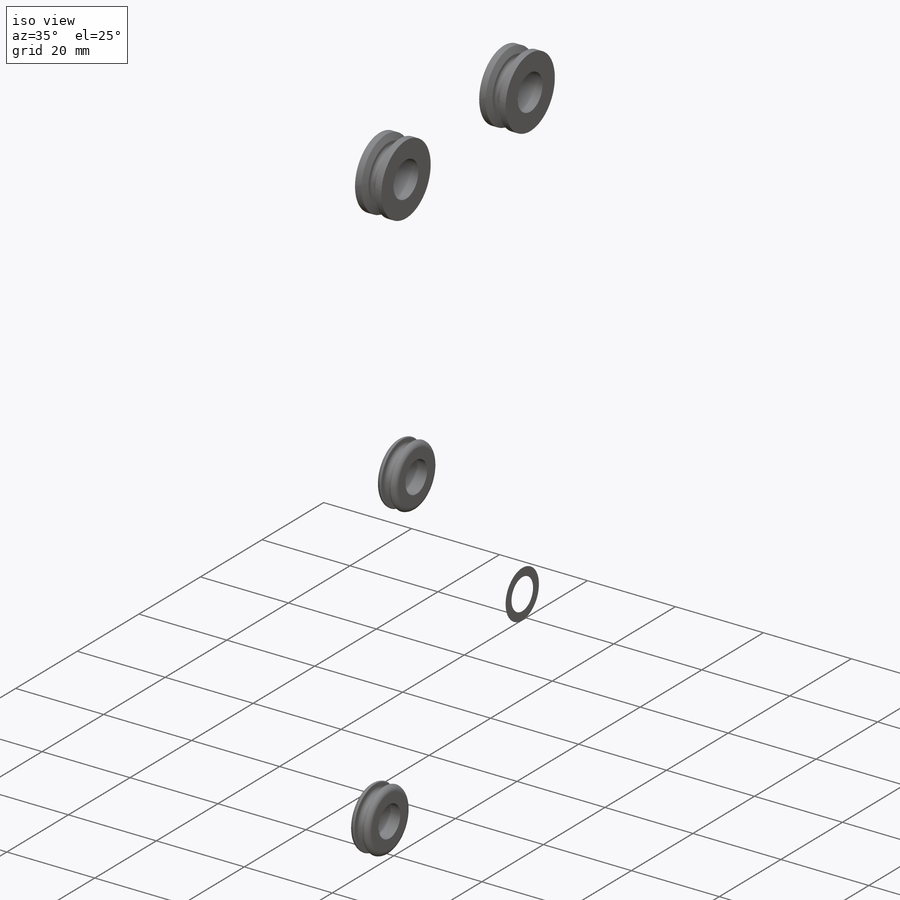
[diagram: iso view]
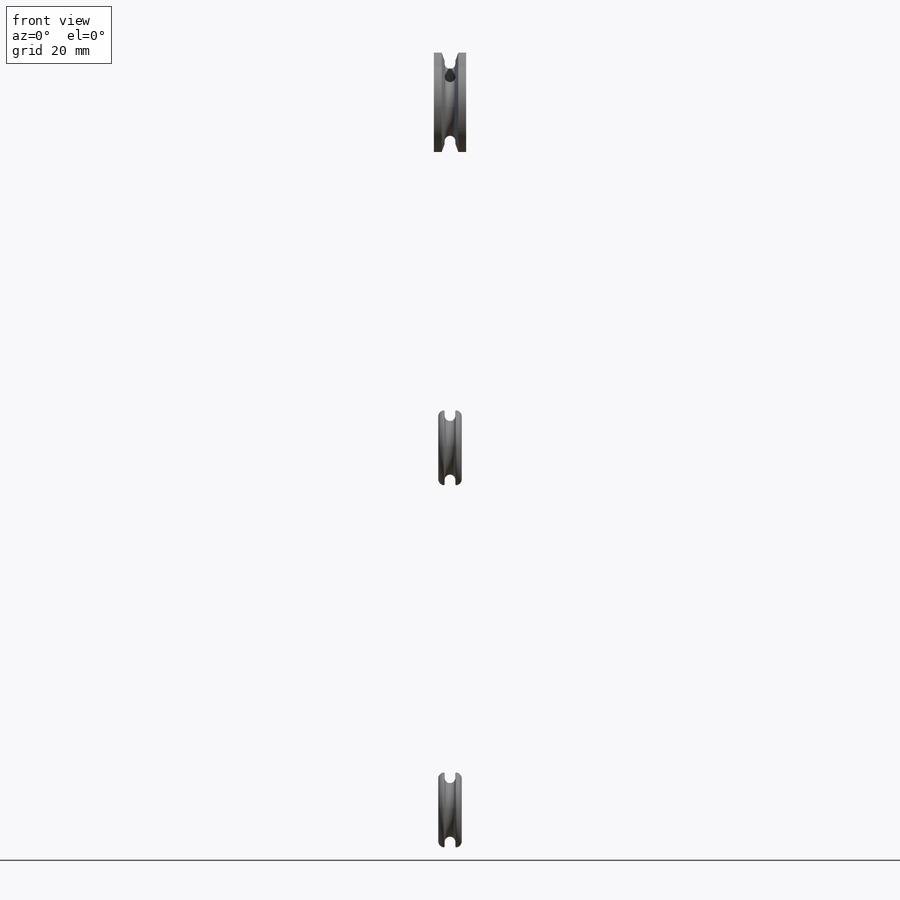
[diagram: front view]
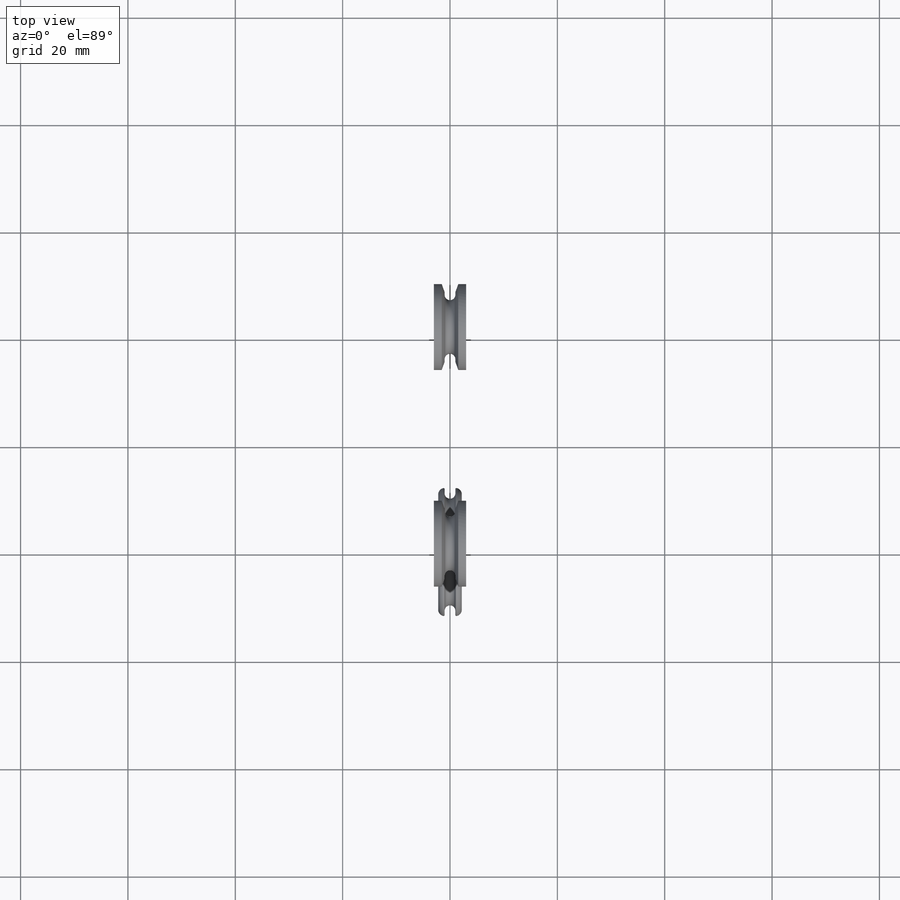
[diagram: top view]
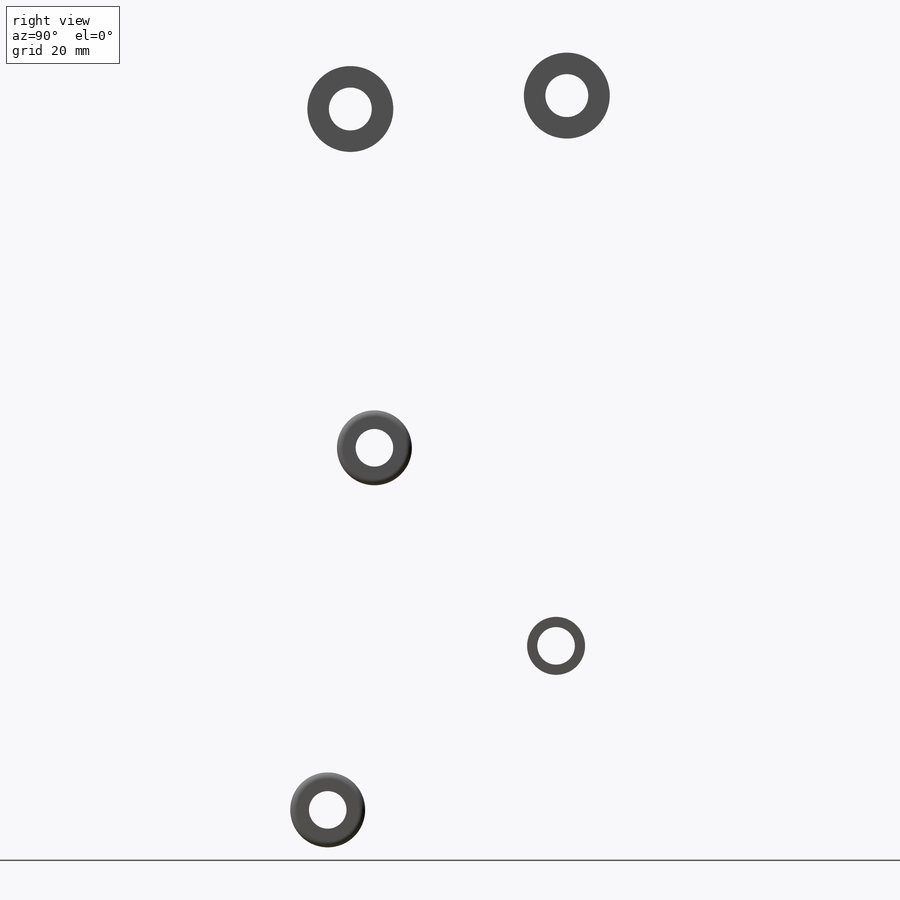
[diagram: right view]
SOLIDWORKS PART (.sldprt)
format: sldprt  version: not decoded by parser v0  size: 20,496,896 bytes
history: native  units: mm
features: sketch x119, plane x56, extrude x21, cut_extrude x19, revolve x13, cut_revolve x12, surface_op x9, chamfer x5, fillet x4, boolean_combine x3, move_body x2, material x1, sweep x1 + 6 further entries (+28 scaffold rows collapsed; 16 parser-record rows omitted)
feature tree (315):
  scaffold x28  (default folders/planes/origin — collapsed)
  material  "Material <nicht festgelegt>"
  plane  "Vorne"
  plane  "Oben"
  plane  "Rechts"
  plane  "Vorne-p-bein-rechts-v02"
  plane  "Oben-p-bein-rechts-v02"
  plane  "Rechts-p-bein-rechts-v02"
  plane  "Vorne-p-geometriemodel-bein-rechts-v02-p-bein-rechts-v02"
  plane  "Oben-p-geometriemodel-bein-rechts-v02-p-bein-rechts-v02"
  plane  "Rechts-p-geometriemodel-bein-rechts-v02-p-bein-rechts-v02"  Offset=60mm
  sketch  "Skizze1-p-geometriemodel-bein-rechts-v02-p-bein-rechts-v02"  dims[D1=20.0mm]
  sketch  "Skizze3-p-geometriemodel-bein-rechts-v02-p-bein-rechts-v02"  dims[D1=178.0mm]
  plane  "Ebene1-p-geometriemodel-bein-rechts-v02-p-bein-rechts-v02"
  "3D-Skizze3-p-geometriemodel-bein-rechts-v02-p-bein-rechts-v02"
  plane  "Ebene2-p-geometriemodel-bein-rechts-v02-p-bein-rechts-v02"
  plane  "Ebene3-p-geometriemodel-bein-rechts-v02-p-bein-rechts-v02"
  plane  "Ebene45-p-bein-rechts-v02"
  sketch  "Skizze50-p-bein-rechts-v02"  dims[D1=50.0mm D2=50.0mm D3=30.0mm D4=30.0mm D5=30.0mm D6=30.0mm]
  sketch  "Skizze51-p-bein-rechts-v02"  dims[D1=10.0mm D2=25.0mm D3=15.0mm D4=20.0mm D5=42.0mm D6=15.0mm]
  plane  "Ebene46-p-bein-rechts-v02"
  plane  "Ebene47-p-bein-rechts-v02"
  sketch  "Skizze52-p-bein-rechts-v02"
  sketch  "Skizze53-p-bein-rechts-v02"
  sketch  "Skizze54-p-bein-rechts-v02"  dims[D1=35.0mm D2=25.0mm]
  sketch  "Skizze55-p-bein-rechts-v02"  dims[D1=20.0mm]
  sketch  "Skizze56-p-bein-rechts-v02"  dims[D1=10.0mm D2=5.0mm D3=25.0mm D4=70.0mm D5=25.0mm D6=40.0mm D7=15.0mm]
  "3D-Skizze16-p-bein-rechts-v02"
  plane  "Ebene48-p-bein-rechts-v02"
  sketch  "Skizze57-p-bein-rechts-v02"  dims[D1=30.0mm D2=35.0mm D3=30.0mm D4=25.0mm]
  "3D-Skizze17-p-bein-rechts-v02"
  sketch  "Skizze58-p-bein-rechts-v02"  dims[c1.D4=~110.057695mm c1.D1=35.0mm c1.D2=35.0mm c2.D2=35.0deg c2.D3=70.0mm]
  sketch  "Skizze59-p-bein-rechts-v02"  dims[c1.D1=268.4mm c2.D1=60.0deg c2.D2=40.0mm c2.D3=268.4mm c3.D3=55.0deg]
  sketch  "Skizze60-p-bein-rechts-v02"  dims[D1=27.0mm D2=27.0mm D3=25.0mm D4=20.0mm]
  sketch  "Skizze61-p-bein-rechts-v02"  dims[D1=15.0mm D2=85.0mm]
  sketch  "Skizze62-p-bein-rechts-v02"  dims[D1=15.0mm]
  sketch  "Skizze63-p-bein-rechts-v02"  dims[c1.D1=85.0mm c1.D2=85.0mm c2.D1=42.5mm]
  "p-bein-rechts-v02"
  parser-record x16  (decoder bookkeeping rows leaked as tree rows — omitted from the tree; the rows remain in map.json)
  plane  "Vorne-p-oberschenkel-hülle-v02"
  plane  "Oben-p-oberschenkel-hülle-v02"
  plane  "Rechts-p-oberschenkel-hülle-v02"
  plane  "Ebene26-p-oberschenkel-hülle-v02"
  plane  "Ebene27-p-oberschenkel-hülle-v02"
  plane  "Ebene28-p-oberschenkel-hülle-v02"
  plane  "Ebene29-p-oberschenkel-hülle-v02"
  sketch  "Skizze44-p-oberschenkel-hülle-v02"
  sketch  "Skizze45-p-oberschenkel-hülle-v02"  dims[D1=80.0mm]
  sketch  "Skizze46-p-oberschenkel-hülle-v02"
  sketch  "Skizze47-p-oberschenkel-hülle-v02"  dims[D1=80.0mm D2=20.0mm]
  sketch  "Skizze49-p-oberschenkel-hülle-v02"
  sketch  "Skizze50-p-oberschenkel-hülle-v02"
  sketch  "Skizze51-p-oberschenkel-hülle-v02"
  sketch  "Skizze52-p-oberschenkel-hülle-v02"  dims[D1=76.0mm]
  sketch  "Skizze62-p-oberschenkel-hülle-v02"
  sketch  "Skizze63-p-oberschenkel-hülle-v02"
  sketch  "Skizze65-p-oberschenkel-hülle-v02"
  sketch  "Skizze66-p-oberschenkel-hülle-v02"
  sketch  "Skizze69-p-oberschenkel-hülle-v02"
  sketch  "Skizze70-p-oberschenkel-hülle-v02"
  sketch  "Skizze71-p-oberschenkel-hülle-v02"
  sketch  "Skizze72-p-oberschenkel-hülle-v02"
  sketch  "Skizze92-p-oberschenkel-hülle-v02"  dims[D1=~70.619815mm D2=~17.016754mm]
  sketch  "Skizze94-p-oberschenkel-hülle-v02"
  sketch  "Skizze84-p-oberschenkel-hülle-v02"  dims[D1=77.0mm]
  sketch  "Skizze90-p-oberschenkel-hülle-v02"
  sketch  "Skizze89-p-oberschenkel-hülle-v02"
  sketch  "Skizze96-p-oberschenkel-hülle-v02"
  sketch  "Skizze95-p-oberschenkel-hülle-v02"  dims[c1.D13=120.0mm c1.D1=~175.129672mm c2.D1=15.0deg c2.D2=23.0mm c2.D3=65.0mm c2.D4=~44.878144mm c3.D4=12.0deg c3.D5=45.0mm c3.D6=10.0mm c3.D7=2.0mm c3.D8=10.0mm c3.D9=175.0mm c3.D10=35.0mm c3.D11=20.0mm c3.D12=2.5mm c3.D2=35.0mm c3.D3=3.0mm c4.D4=~175.845119mm c5.D4=15.0deg c5.D2=60.0mm c5.D3=19.0mm c5.D5=65.0mm c5.D6=11.0mm c5.D11=5.0mm c5.D12=91.0mm c5.D13=20.0mm c5.D14=11.0mm]
  "p-oberschenkel-hülle-v02"
  move_body  "Körper-Verschieben/Kopieren3"
  "Deckungsgleich1"
  sketch  "Skizze32"  dims[D1=15.8mm]
  cut_extrude  "Schnitt-Linear austragen1"  [1 undecoded]
  sketch  "Skizze31"  dims[c1.D1=~12.199433mm c2.D1=90.0deg c3.D1=9.6mm c3.D2=7.4mm c3.D3=6.6mm c3.D4=3.4mm c3.D5=47.0mm c3.D6=51.0mm c3.D7=4.8mm c3.D8=722.0mm c3.D9=65.0mm]
  cut_revolve  "Schnitt-Rotation1"  Angle=180deg
  sketch  "Skizze33"  dims[D1=43.3mm D2=8.0mm D3=8.0mm D4=29.0mm D5=26.3mm]
  cut_revolve  "Schnitt-Rotation2"  Angle=360deg
  sketch  "Skizze35"  dims[c1.D1=40.0mm c1.D2=45.0mm c1.D3=~85.919092mm c2.D3=5.0deg c2.D4=26.1mm]
  plane  "Ebene6"
  sketch  "Skizze53"  dims[c1.D1=26.1mm c1.D2=55.0mm c1.D3=80.0mm c1.D4=26.1mm c2.D4=10.0deg]
  plane  "Ebene8"
  sketch  "Skizze57"  dims[c1.D1=70.0mm c1.D2=66.0mm c1.D3=~117.504008mm c2.D3=18.0deg c2.D4=26.1mm]
  plane  "Ebene9"
  sketch  "Skizze60"  dims[c1.D1=26.1mm c1.D2=30.0mm c1.D3=90.0mm c1.D4=~113.616273mm c2.D4=2.5deg]
  plane  "Ebene10"
  fillet  "Verrundung1"  Radius=0.2mm
  sketch  "Skizze49"  dims[c1.D1=23.5mm c1.D2=2.0mm c1.D3=~105.126695mm c2.D3=69.0deg c2.D4=20.0mm c2.D5=15.0mm]
  extrude  "Aufsatz-Linear austragen1"  Depth=40mm
  sketch  "Skizze50"  dims[D1=4.0mm D2=30.0mm D3=5.0mm D4=8.0mm]
  cut_extrude  "Schnitt-Linear austragen2"  Depth=18mm
  sketch  "Skizze54"  dims[c1.D1=7.0mm c1.D2=34.5mm c1.D3=110.0mm c2.D3=40.0deg c2.D4=15.0mm c2.D5=20.0mm c2.D1=25.0mm c2.D2=12.0mm c3.D3=12.0mm c4.D3=74.0deg]
  extrude  "Aufsatz-Linear austragen3"  Depth=40mm
  sketch  "Skizze56"  dims[c1.D4=4.0mm c1.D1=35.0mm c1.D2=4.0mm c1.D3=30.0mm c2.D1=5.0mm c2.D2=8.0mm]
  cut_extrude  "Schnitt-Linear austragen3"  Depth=18mm
  sketch  "Skizze58"  dims[c1.D1=57.0mm c1.D2=23.0mm c1.D3=~121.180212mm c2.D3=70.0deg c2.D4=18.0mm c2.D5=15.0mm c2.D2=~123.380212mm c3.D2=~20.65891deg]
  extrude  "Aufsatz-Linear austragen4"  Depth=40mm
  sketch  "Skizze59"  dims[D1=4.0mm D2=5.0mm D3=30.0mm D4=7.0mm]
  cut_extrude  "Schnitt-Linear austragen4"  Depth=18mm
  plane  "Ebene25"  Offset=50mm
  plane  "Ebene26"  Offset=45mm
  sketch  "Skizze107"  dims[D1=5.0mm D2=5.0mm D3=242.0mm D4=10.0mm D5=15.0mm]
  extrude  "Aufsatz-Linear austragen11"  [1 undecoded]
  sketch  "Skizze108"  dims[c1.D4=35.0mm c1.D1=17.0mm c1.D2=17.0mm c1.D3=233.0mm c2.D4=8.0mm c2.D5=12.0mm c2.D6=12.0mm]
  extrude  "Aufsatz-Linear austragen12"  [1 undecoded]
  fillet  "Oberfläche-Offset5"  Radius=6mm
  sketch  "Skizze105"  dims[c1.D1=24.0mm c1.D2=~172.906517mm c2.D2=36.0deg c2.D3=115.0mm]
  surface_op  "Oberfläche-Linear austragen1"
  fillet  "Oberfläche-Offset7"  Radius=8mm
  fillet  "Oberfläche-Offset8"  Radius=3mm
  surface_op  "Oberfläche-Trimmen10"
  surface_op  "Oberfläche-Trimmen11"
  surface_op  "Oberfläche-Trimmen12"
  surface_op  "Oberfläche-Trimmen13"
  surface_op  "Oberfläche-Zusammenfügen3"
  boolean_combine  "Kombinieren1"
  sketch  "Skizze61"  dims[D1=20.0mm D2=20.0mm D3=29.0mm D4=15.9mm D5=20.0mm D6=74.0mm]
  cut_revolve  "Schnitt-Rotation3"  Angle=360deg
  sketch  "Skizze62"  dims[D1=8.2mm]
  cut_extrude  "Schnitt-Linear austragen5"  Depth=14mm
  sketch  "Skizze63"  dims[c1.D1=45.0mm c1.D2=268.4mm c2.D2=10.0deg c2.D3=~119.812416mm c3.D3=0.0deg c3.D4=35.0mm]
  cut_extrude  "Schnitt-Linear austragen6"  Depth=1.5mm
  chamfer  "Fase1"  Distance=1mm Angle=20deg
  sketch  "Skizze64"  dims[c1.D1=2.0mm c1.D2=1.0mm c1.D3=~28.547153mm c2.D3=1.0deg c2.D4=45.0mm c2.D5=1.5mm]
  cut_extrude  "Schnitt-Linear austragen7"  [1 undecoded]
  plane  "Ebene11"  Offset=15mm
  surface_op  "Oberfläche-Trimmen14"
  surface_op  "Oberfläche-Trimmen15"
  surface_op  "Oberfläche-Trimmen16"
  sketch  "Skizze65"  dims[D3=6.0mm D1=22.0mm D2=35.0mm]
  cut_extrude  "Schnitt-Linear austragen8"  Depth=10mm
  sketch  "Skizze66"  dims[D1=9.0mm D2=20.0mm]
  cut_extrude  "Schnitt-Linear austragen9"  Depth=6mm
  plane  "Ebene12"  Offset=12mm
  sketch  "Skizze67"  dims[D1=11.0mm]
  cut_extrude  "Schnitt-Linear austragen10"  [1 undecoded]
  sketch  "Skizze68"  dims[D1=6.0mm]
  extrude  "Aufsatz-Linear austragen5"  Depth=2mm
  sketch  "Skizze69"  dims[D1=6.0mm]
  extrude  "Aufsatz-Linear austragen6"  Depth=2mm
  sketch  "Skizze70"  dims[D1=6.0mm]
  extrude  "Aufsatz-Linear austragen7"  Depth=2mm
  plane  "Ebene13"  Offset=10mm
  sketch  "Skizze71"  dims[D1=6.5mm D2=10.0mm]
  cut_extrude  "Schnitt-Linear austragen11"  Depth=3.5mm
  plane  "Ebene14"  Offset=10mm
  sketch  "Skizze72"  dims[D1=6.5mm D2=10.0mm]
  cut_extrude  "Schnitt-Linear austragen12"  Depth=3.5mm
  plane  "Ebene15"  Offset=10mm
  sketch  "Skizze73"  dims[D1=6.5mm D2=20.0mm]
  cut_extrude  "Schnitt-Linear austragen13"  Depth=3.5mm
  sketch  "Skizze75"  dims[c1.D1=3.6mm c1.D2=~10.533495mm c2.D2=45.0deg c2.D3=7.5mm c2.D4=8.0mm c2.D5=6.5mm]
  cut_revolve  "Schnitt-Rotation4"  Angle=360deg
  sketch  "Skizze76"  dims[c1.D1=110.0mm c2.D1=30.0deg c2.D2=67.0mm c2.D3=18.5mm c2.D4=6.0mm c2.D5=22.0mm c3.D2=~6.375644mm c3.D3=73.0mm]
  revolve  "Rotation1"  Angle=360deg
  sketch  "Skizze77"  dims[c1.D1=3.5mm c1.D2=10.0mm c2.D1=3.6mm c2.D2=19.5mm c2.D3=22.0mm c2.D4=3.0mm c2.D5=20.0mm]
  cut_revolve  "Schnitt-Rotation5"  Angle=360deg
  plane  "Ebene17"  Offset=36mm
  sketch  "Skizze78"  dims[c1.D1=110.0mm c2.D1=30.0deg c2.D2=45.0mm c2.D3=15.0mm c2.D4=13.0mm c2.D5=95.0mm c2.D6=20.0mm c3.D2=5.0mm c3.D4=11.0mm c3.D5=91.0mm c3.D1=19.0mm c3.D3=60.0mm c3.D7=110.0mm c4.D7=15.0deg c4.D8=11.0mm c4.D9=65.0mm]
  extrude  "Aufsatz-Linear austragen8"  [1 undecoded]
  sketch  "Skizze79"  dims[D1=2.0mm D2=210.0mm D3=35.0mm D4=10.0mm D5=140.0mm D6=3.0mm D7=10.0mm D8=25.0mm]
  sketch  "Skizze80"  dims[D1=2.0mm D2=210.0mm D3=35.0mm D4=10.0mm]
  extrude  "Aufsatz-Linear austragen10"  [1 undecoded]
  sketch  "Skizze109"  dims[D1=0.0mm D2=0.0mm]
  cut_extrude  "Schnitt-Linear austragen14"  [1 undecoded]
  boolean_combine  "Kombinieren2"
  boolean_combine  "Kombinieren3"
  sketch  "Skizze134"  dims[D1=0.0mm]
  cut_extrude  "Schnitt-Linear austragen15"  Depth=2mm
  sketch  "Skizze135"  dims[D1=8.0mm D2=85.0mm D3=15.0mm]
  cut_revolve  "Schnitt-Rotation6"  Angle=360deg
  plane  "Ebene27"  Offset=5.5mm
  sketch  "Skizze136"  dims[c1.D1=30.0mm c1.D2=70.0mm c1.D3=2.0mm c1.D4=~20.480774mm c2.D3=2.0mm]
  extrude  "Aufsatz-Linear austragen13"  Depth=1.5mm
  sketch  "Skizze137"  dims[D1=12.0mm]
  plane  "Ebene28"
  sketch  "Skizze138"  dims[D1=~4.296051mm D2=8.0mm]
  sweep  "Austragung1"
  sketch  "Skizze139"  dims[c1.D3=160.0mm c1.D1=225.0mm c1.D2=35.0mm c1.D4=~172.99764mm c2.D4=~8.700077deg c2.D5=165.0mm c3.D5=~25.857427deg c3.D4=165.0mm c4.D4=15.0deg c4.D5=~82.541158mm]
  plane  "Ebene29"
  sketch  "Skizze140"  dims[c1.D3=2.0mm c1.D4=2.0mm c1.D1=20.0mm c1.D2=15.0mm c2.D1=18.0mm]
  cut_revolve  "Schnitt-Rotation8"  Angle=360deg
  plane  "Ebene30"
  sketch  "Skizze141"  dims[D13=2.0mm D14=2.0mm D1=2.0mm D2=8.0mm D3=6.0mm D4=12.0mm D5=16.0mm D6=1.0mm D7=1.0mm D8=1.0mm D9=1.0mm D10=3.5mm D11=15.0mm D12=21.0mm D15=2.0mm]
  revolve  "Rotation2"  Angle=360deg
  chamfer  "Fase2"  Distance=1.5mm Angle=30deg
  sketch  "fadenführung Extension"  dims[c1.D3=85.0mm c1.D4=85.0mm c2.D3=85.0mm c2.D6=12.0mm c2.D1=~163.476979mm c3.D1=15.0deg c3.D2=60.0mm c3.D4=~163.476979mm c4.D4=~21.28512deg c5.D4=~163.476979mm c6.D4=15.0deg c6.D5=40.0mm]
  sketch  "Skizze147"  dims[c1.D2=10.0mm c1.D3=20.0mm c1.D1=4.0mm c2.D2=4.0mm]
  cut_extrude  "Schnitt-Linear austragen17"  Depth=6mm
  plane  "Ebene31"
  plane  "Ebene32"
  sketch  "Skizze148"  dims[c1.D1=1.0mm c1.D2=14.0mm c1.D3=5.0mm c1.D4=7.0mm c1.D5=0.8mm c1.D6=6.0mm c1.D7=3.0mm c2.D3=0.8mm]
  revolve  "Rotation5"  Angle=360deg
  sketch  "Skizze150"  dims[c1.D1=1.0mm c1.D2=7.0mm c1.D3=14.0mm c1.D4=~5.216496mm c2.D4=90.0deg c3.D4=~5.216496mm c3.D5=~2.391752mm c4.D4=0.8mm c4.D5=0.8mm]
  revolve  "Rotation6"  Angle=360deg
  sketch  "Skizze152"  dims[c1.D1=55.1mm c1.D2=14.0mm c1.D3=160.0mm c2.D3=10.0deg]
  sketch  "Fadenführung Flexion"  dims[D3=12.0mm D1=307.0mm D2=15.0mm D4=180.0mm D5=18.0mm D6=77.5mm D7=20.0mm D8=43.0mm D9=12.0mm]
  plane  "Ebene33"
  sketch  "Skizze154"  dims[D3=2.0mm D4=2.0mm D1=18.0mm D2=15.0mm]
  cut_revolve  "Schnitt-Rotation9"  Angle=360deg
  sketch  "Skizze155"  dims[c1.D12=2.0mm c1.D13=2.0mm c1.D1=8.0mm c1.D2=16.0mm c1.D3=12.0mm c1.D4=15.0mm c1.D5=6.0mm c1.D6=2.0mm c1.D7=3.0mm c1.D8=1.0mm c1.D9=1.0mm c1.D10=1.0mm c1.D11=1.0mm c2.D12=0.6mm c2.D14=21.0mm c2.D15=4.0mm]
  revolve  "Rotation7"  Angle=360deg
  chamfer  "Fase4"  Distance=1.5mm Angle=30deg
  plane  "Ebene34"
  sketch  "Skizze156"  dims[c1.D2=1.0mm c1.D3=1.6mm c1.D1=3.5mm c2.D2=2.0mm c2.D3=5.2mm c2.D4=12.0mm c2.D1=7.0mm c2.D5=0.8mm c2.D6=14.0mm c2.D7=12.2mm c2.D8=16.0mm c2.D9=0.8mm c2.D10=0.8mm c2.D11=1.0mm]
  cut_revolve  "Schnitt-Rotation10"  Angle=360deg
  revolve  "Rotation8"  [1 undecoded]
  sketch  "Skizze156<3>"  dims[D1=360.0deg]
  sketch  "Skizze157"  dims[D1=12.0mm D4=8.0mm D2=10.0mm D3=25.0mm]
  extrude  "Aufsatz-Linear austragen18"  Depth=4mm
  extrude  "Aufsatz-Linear austragen19"  [1 undecoded]
  sketch  "Skizze157<3>"  dims[c1.D1=1.0mm c2.D1=3.0mm c3.D1=1.0mm]
  plane  "Ebene35"
  sketch  "Skizze158"  dims[D10=0.5mm D11=0.5mm D1=7.0mm D2=12.0mm D3=16.0mm D4=5.2mm D5=2.0mm D6=0.8mm D7=14.0mm D8=0.8mm D9=0.8mm D12=10.0mm D13=4.0mm]
  revolve  "Rotation9"  Angle=360deg
  plane  "Ebene36"  Offset=10mm
  sketch  "Skizze161"  dims[c1.D3=12.0mm c1.D1=65.0mm c1.D2=68.0mm c1.D4=68.0mm c1.D5=20.0mm c1.D6=~163.476979mm c2.D6=30.0deg]
  plane  "Ebene37"
  sketch  "Skizze162"  dims[c1.D4=0.75mm c1.D11=2.0mm c1.D12=2.0mm c1.D1=7.8mm c1.D2=14.0mm c1.D3=12.0mm c2.D4=2.0mm c2.D5=6.0mm c2.D6=12.2mm c2.D7=4.4mm c2.D8=16.0mm c2.D9=~1.379738mm c3.D9=50.0deg c3.D10=~1.486002mm c4.D10=25.0deg c4.D11=1.0mm c4.D13=0.8mm]
  cut_revolve  "Schnitt-Rotation11"  Angle=360deg
  revolve  "Rotation10"  [1 undecoded]
  sketch  "Skizze162<3>"  dims[c1.D1=360.0deg c2.D1=0.2mm]
  sketch  "Skizze163"  dims[c1.D1=0.3mm c1.D2=3.0mm c1.D3=1.5mm c1.D4=2.0mm c1.D5=0.5mm c2.D3=0.4mm]
  revolve  "Rotation12"  Angle=360deg
  plane  "Ebene43"
  sketch  "Skizze170"  dims[D1=15.8mm D2=~1.347373mm]
  revolve  "Rotation13"  Angle=30deg
  plane  "Ebene38"  Offset=45mm
  sketch  "Skizze164"  dims[D1=15.0mm D2=15.0mm D3=45.0mm]
  extrude  "Aufsatz-Linear austragen20"  Depth=5mm
  plane  "Ebene39"
  sketch  "Skizze165"  dims[c1.D1=4.0mm c1.D2=11.0mm c1.D3=75.0mm c1.D4=~163.476979mm c2.D4=6.0deg c2.D5=16.0mm c2.D6=~20.89548mm c3.D6=100.0deg c3.D7=~9.095144mm]
  extrude  "Aufsatz-Linear austragen21"  Depth=5mm
  sketch  "Skizze182"  dims[c1.D2=9.0mm c1.D1=~41.639066mm c2.D1=15.0deg]
  cut_extrude  "Schnitt-Linear austragen18"  [1 undecoded]
  sketch  "Skizze183"
  extrude  "Aufsatz-Linear austragen29"  [1 undecoded]
  plane  "Ebene40"  Offset=2mm
  plane  "Ebene44"  Offset=20mm
  sketch  "Skizze171"  dims[D1=2.0mm D2=4.0mm D3=24.0mm D4=12.0mm D5=4.0mm D6=8.0mm]
  extrude  "Aufsatz-Linear austragen24"  Depth=5mm
  sketch  "Skizze172"  dims[c1.D1=12.0mm c1.D2=70.0mm c1.D3=0.0mm c1.D4=~189.029185mm c2.D4=52.0deg c2.D5=11.0mm c2.D6=25.0mm c2.D7=~189.029185mm c3.D7=5.0deg]
  plane  "Ebene45"
  sketch  "Skizze173"  dims[D9=2.0mm D10=2.0mm D1=0.4mm D2=7.8mm D3=14.0mm D4=2.0mm D5=1.0mm D6=12.2mm D7=0.8mm D8=12.0mm D11=6.2mm D12=0.8mm]
  cut_revolve  "Schnitt-Rotation12"  Angle=360deg
  revolve  "Rotation14"  [1 undecoded]
  sketch  "Skizze173<3>"  dims[c1.D1=360.0deg c2.D1=0.5mm]
  plane  "Ebene46"
  sketch  "Skizze174"  dims[c1.D8=2.0mm c1.D9=2.0mm c1.D12=0.75mm c1.D1=2.0mm c1.D2=0.4mm c1.D3=0.8mm c1.D4=1.0mm c1.D5=7.8mm c1.D6=12.0mm c1.D7=12.2mm c2.D8=5.2mm c2.D10=14.0mm c2.D11=1.2mm c2.D13=1.2mm c3.D11=1.2mm c4.D11=25.0deg c4.D13=~1.258819mm c5.D13=~25.388858deg c6.D13=1.2mm c7.D13=25.0deg c7.D2=6.2mm]
  cut_revolve  "Schnitt-Rotation13"  Angle=360deg
  revolve  "Rotation15"  [1 undecoded]
  sketch  "Skizze174<3>"  dims[D1=360.0deg]
  sketch  "Skizze176"  dims[c1.D1=10.0mm c1.D2=~7.540145mm c2.D2=55.0deg c2.D3=8.0mm]
  extrude  "Aufsatz-Linear austragen25"  Depth=3mm
  sketch  "Skizze177"  dims[D1=0.0mm]
  extrude  "Aufsatz-Linear austragen26"  Depth=3mm
  sketch  "Skizze178"  dims[D4=2.0mm D5=2.0mm D9=5.0mm D10=5.0mm D1=3.0mm D2=6.0mm D3=8.0mm D6=3.0mm D7=3.0mm D8=3.0mm]
  revolve  "Rotation16"  Angle=75deg
  sketch  "Skizze179"  dims[c1.D3=1.0mm c1.D4=2.0mm c1.D5=2.0mm c1.D1=0.4mm c1.D2=0.3mm c1.D6=5.1mm c2.D2=4.0mm c2.D7=7.0mm c2.D8=7.0mm c2.D9=~13.967179mm c3.D9=90.0deg c4.D9=~13.967179mm]
  extrude  "Aufsatz-Linear austragen27"  Depth=2mm
  plane  "Ebene47"
  sketch  "Skizze181"
  extrude  "Aufsatz-Linear austragen28"  Depth=1mm
  sketch  "Skizze184"  dims[D1=25.0mm D2=16.0mm D3=15.0mm]
  cut_extrude  "Schnitt-Linear austragen19"  Depth=54mm
  plane  "Ebene48"  Offset=68mm
  sketch  "Skizze185"  dims[D1=10.0mm D2=4.0mm D3=33.0mm]
  plane  "Ebene49"  Offset=22mm
  sketch  "Skizze186"  dims[D1=100.0mm]
  cut_extrude  "Schnitt-Linear austragen20"  Depth=2mm
  chamfer  "Fase5"  Distance=1.5mm Angle=20deg
  chamfer  "Fase6"  Distance=1.5mm Angle=20deg
  move_body  "Körper-Verschieben/Kopieren1"
decode coverage: 157 of 208 modeling features carry decoded parameters; 6 rows unclassified (native names shown)
note: ~ marks probable driven/reference dimensions
note: 15 parameter values undecoded
summary: no parameter record found for 15 features
note: suppression state not decoded; provenance and decode notes live in map.json
